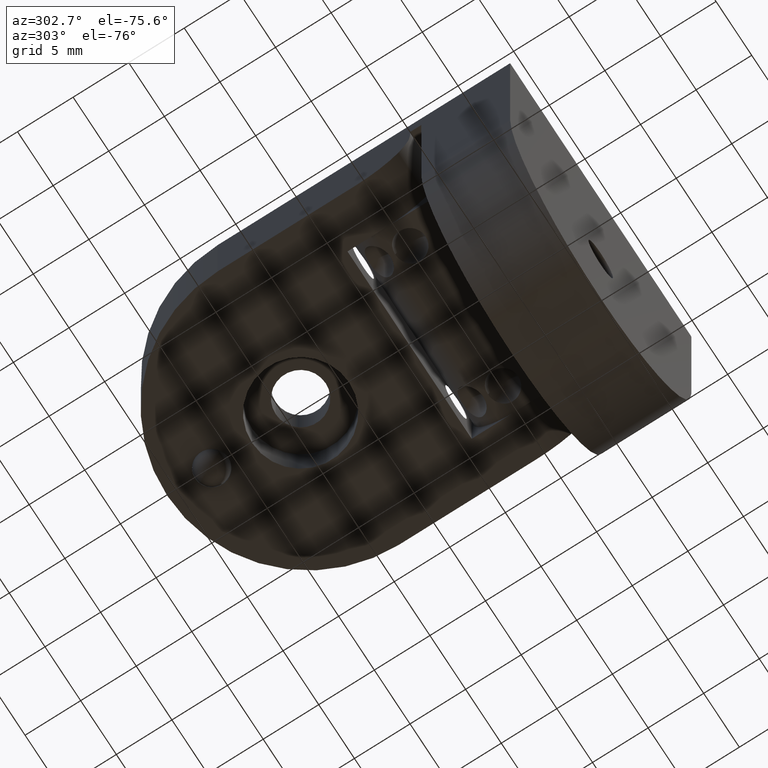
[diagram: clean part render]
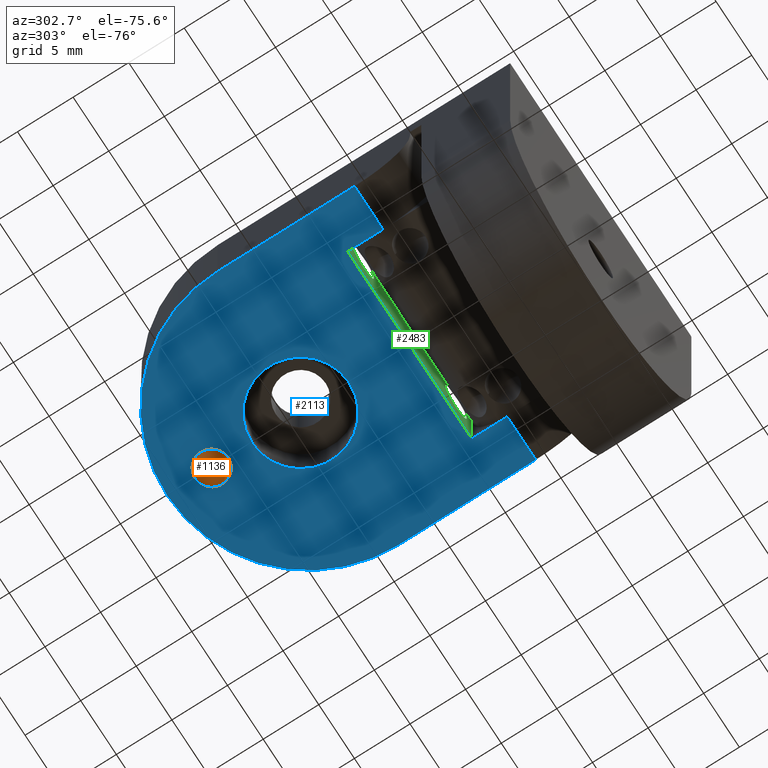
[diagram: same view with three faces highlighted in distinct colors, each labeled with its STEP entity id]
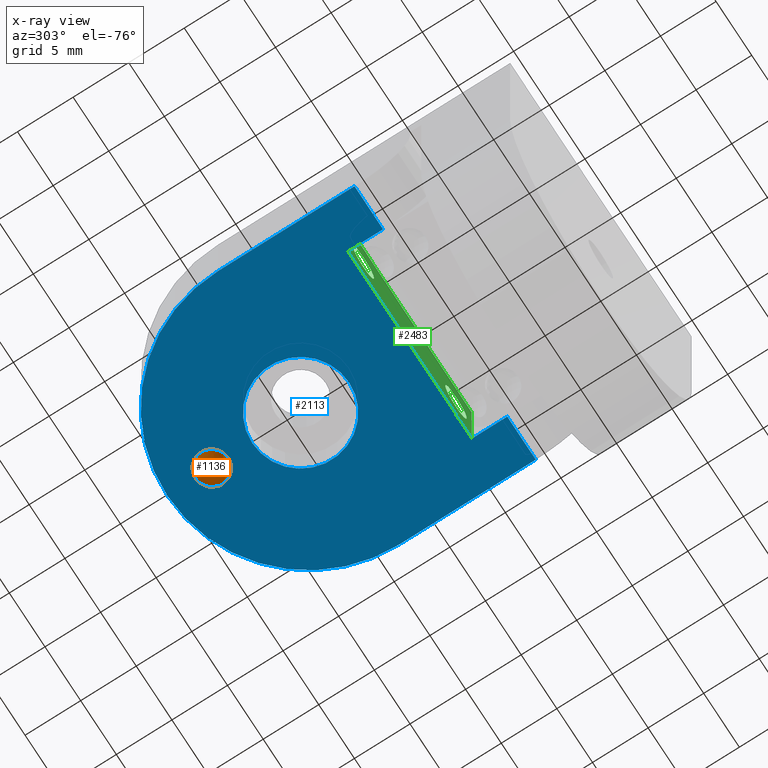
[diagram: x-ray of the same camera — body ghosted, the three highlighted faces saturated]
A machine part, auxiliary view with three faces highlighted in distinct colors.
The next image is the same camera in x-ray (body ghosted, the three faces saturated) — at least one of them is partly hidden behind the body in this view.
Their STEP definitions:

[orange] entity #1136 — the highlighted spherical surface has radius 1.5 mm.
#114 = EDGE_CURVE ( 'NONE', #589, #2104, #953, .T. ) ;
#589 = VERTEX_POINT ( 'NONE', #1924 ) ;
#635 = ORIENTED_EDGE ( 'NONE', *, *, #1484, .T. ) ;
#715 = CARTESIAN_POINT ( 'NONE',  ( 1.835175442783762800E-014, 34.99458246385521000, -7.728073402767171800 ) ) ;
#896 = AXIS2_PLACEMENT_3D ( 'NONE', #2112, #1370, #1125 ) ;
#953 = CIRCLE ( 'NONE', #1268, 1.500000000000000000 ) ;
#957 = DIRECTION ( 'NONE',  ( 1.000000000000000000, 0.0000000000000000000, 0.0000000000000000000 ) ) ;
#1125 = DIRECTION ( 'NONE',  ( 1.000000000000000000, 0.0000000000000000000, 0.0000000000000000000 ) ) ;
#1136 = ADVANCED_FACE ( 'NONE', ( #2755 ), #1628, .T. ) ;
#1243 = AXIS2_PLACEMENT_3D ( 'NONE', #2785, #2299, #2069 ) ;
#1268 = AXIS2_PLACEMENT_3D ( 'NONE', #715, #2370, #957 ) ;
#1290 = EDGE_LOOP ( 'NONE', ( #2354, #635 ) ) ;
#1370 = DIRECTION ( 'NONE',  ( 0.0000000000000000000, -4.524811937412190500E-018, -1.000000000000000000 ) ) ;
#1484 = EDGE_CURVE ( 'NONE', #589, #2104, #1749, .T. ) ;
#1628 = SPHERICAL_SURFACE ( 'NONE', #896, 1.500000000000000000 ) ;
#1695 = CARTESIAN_POINT ( 'NONE',  ( 1.797438828808581800E-014, 36.49458246385521000, -7.728073402767171800 ) ) ;
#1749 = CIRCLE ( 'NONE', #1243, 1.500000000000000000 ) ;
#1924 = CARTESIAN_POINT ( 'NONE',  ( 1.891281758746154400E-014, 33.49458246385521000, -7.728073402767171800 ) ) ;
#2069 = DIRECTION ( 'NONE',  ( -1.000000000000000000, 0.0000000000000000000, 0.0000000000000000000 ) ) ;
#2104 = VERTEX_POINT ( 'NONE', #1695 ) ;
#2112 = CARTESIAN_POINT ( 'NONE',  ( 1.835175442783762800E-014, 34.99458246385521000, -7.728073402767171800 ) ) ;
#2299 = DIRECTION ( 'NONE',  ( 9.383829648144489800E-017, -4.524811937412160500E-018, -1.000000000000000000 ) ) ;
#2354 = ORIENTED_EDGE ( 'NONE', *, *, #114, .F. ) ;
#2370 = DIRECTION ( 'NONE',  ( 2.862638343329075000E-017, 4.524811937412199000E-018, 1.000000000000000000 ) ) ;
#2755 = FACE_OUTER_BOUND ( 'NONE', #1290, .T. ) ;
#2785 = CARTESIAN_POINT ( 'NONE',  ( 1.835175442783762800E-014, 34.99458246385521000, -7.728073402767171800 ) ) ;

[blue] entity #2113 — the highlighted planar face has unit normal (0, -0, 1).
#2 = CARTESIAN_POINT ( 'NONE',  ( -12.69999999999998200, 38.99999999999999300, -7.999999999999996400 ) ) ;
#40 = DIRECTION ( 'NONE',  ( 1.738121547108116200E-016, 1.000000000000000000, 0.0000000000000000000 ) ) ;
#53 = VERTEX_POINT ( 'NONE', #1588 ) ;
#76 = VERTEX_POINT ( 'NONE', #1935 ) ;
#88 = CARTESIAN_POINT ( 'NONE',  ( 1.201800217643921000E-014, 26.29999999999999700, -7.999999999999998200 ) ) ;
#96 = FACE_OUTER_BOUND ( 'NONE', #1973, .T. ) ;
#126 = DIRECTION ( 'NONE',  ( -1.738121547108112500E-016, -1.000000000000000000, 0.0000000000000000000 ) ) ;
#147 = ORIENTED_EDGE ( 'NONE', *, *, #2609, .F. ) ;
#197 = DIRECTION ( 'NONE',  ( 1.738121547108113500E-016, 1.000000000000000000, 1.206061786844440300E-031 ) ) ;
#227 = EDGE_CURVE ( 'NONE', #2131, #244, #2502, .T. ) ;
#244 = VERTEX_POINT ( 'NONE', #2424 ) ;
#267 = ORIENTED_EDGE ( 'NONE', *, *, #792, .T. ) ;
#280 = DIRECTION ( 'NONE',  ( -1.000000000000000000, 1.738121547108111300E-016, 1.734720147809985500E-016 ) ) ;
#317 = DIRECTION ( 'NONE',  ( -1.734720147809981100E-016, -1.206061786844441000E-031, -1.000000000000000000 ) ) ;
#334 = DIRECTION ( 'NONE',  ( -1.738121547108113700E-016, -1.000000000000000000, 0.0000000000000000000 ) ) ;
#415 = ORIENTED_EDGE ( 'NONE', *, *, #1960, .F. ) ;
#423 = CARTESIAN_POINT ( 'NONE',  ( 1.542815815127709900E-014, 38.99999999999999300, -7.999999999999998200 ) ) ;
#443 = ORIENTED_EDGE ( 'NONE', *, *, #2789, .T. ) ;
#476 = DIRECTION ( 'NONE',  ( 5.816392297902422400E-017, 1.000000000000000000, 1.406679104488169600E-031 ) ) ;
#478 = LINE ( 'NONE', #2670, #2280 ) ;
#486 = EDGE_LOOP ( 'NONE', ( #521, #1298 ) ) ;
#505 = ORIENTED_EDGE ( 'NONE', *, *, #708, .T. ) ;
#521 = ORIENTED_EDGE ( 'NONE', *, *, #622, .F. ) ;
#534 = DIRECTION ( 'NONE',  ( 1.734720147809981100E-016, -1.507577233555550300E-031, 1.000000000000000000 ) ) ;
#618 = DIRECTION ( 'NONE',  ( -1.734720147809981100E-016, -1.206061786844441000E-031, -1.000000000000000000 ) ) ;
#621 = CARTESIAN_POINT ( 'NONE',  ( 1.469925632393499100E-014, 33.49999999999998600, -7.999999999999998200 ) ) ;
#622 = EDGE_CURVE ( 'NONE', #2276, #2323, #2804, .T. ) ;
#685 = CARTESIAN_POINT ( 'NONE',  ( 8.700000000000013500, 17.19999999999999200, -8.000000000000000000 ) ) ;
#692 = ORIENTED_EDGE ( 'NONE', *, *, #2390, .T. ) ;
#699 = VECTOR ( 'NONE', #280, 1000.000000000000000 ) ;
#708 = EDGE_CURVE ( 'NONE', #2559, #2655, #478, .T. ) ;
#735 = VECTOR ( 'NONE', #1262, 1000.000000000000000 ) ;
#737 = EDGE_CURVE ( 'NONE', #2323, #2276, #2927, .T. ) ;
#763 = CARTESIAN_POINT ( 'NONE',  ( 12.70000000000002400, 13.99999999999999100, -8.000000000000000000 ) ) ;
#792 = EDGE_CURVE ( 'NONE', #2655, #2383, #2534, .T. ) ;
#837 = LINE ( 'NONE', #1163, #2987 ) ;
#847 = EDGE_LOOP ( 'NONE', ( #2667, #147 ) ) ;
#861 = DIRECTION ( 'NONE',  ( -1.734720147809981100E-016, -1.206061786844441000E-031, -1.000000000000000000 ) ) ;
#864 = VERTEX_POINT ( 'NONE', #2549 ) ;
#904 = CARTESIAN_POINT ( 'NONE',  ( -8.699999999999978000, 13.99999999999999500, -7.999999999999996400 ) ) ;
#954 = ORIENTED_EDGE ( 'NONE', *, *, #2375, .T. ) ;
#1163 = CARTESIAN_POINT ( 'NONE',  ( 12.70000000000001700, 38.99999999999996400, -8.000000000000000000 ) ) ;
#1198 = DIRECTION ( 'NONE',  ( -1.734720147809981100E-016, -1.206061786844441000E-031, -1.000000000000000000 ) ) ;
#1244 = DIRECTION ( 'NONE',  ( -1.000000000000000000, 7.411540321789116800E-017, 1.734720147809985500E-016 ) ) ;
#1262 = DIRECTION ( 'NONE',  ( -1.738121547108113500E-016, -1.000000000000000000, -1.206061786844440300E-031 ) ) ;
#1273 = AXIS2_PLACEMENT_3D ( 'NONE', #2872, #1455, #40 ) ;
#1292 = AXIS2_PLACEMENT_3D ( 'NONE', #1946, #534, #2181 ) ;
#1294 = EDGE_CURVE ( 'NONE', #3061, #864, #1714, .T. ) ;
#1298 = ORIENTED_EDGE ( 'NONE', *, *, #737, .F. ) ;
#1372 = DIRECTION ( 'NONE',  ( -1.000000000000000000, 1.738121547108111300E-016, 1.734720147809985500E-016 ) ) ;
#1428 = FACE_BOUND ( 'NONE', #847, .T. ) ;
#1455 = DIRECTION ( 'NONE',  ( -1.734720147809981100E-016, -1.206061786844441000E-031, -1.000000000000000000 ) ) ;
#1478 = CIRCLE ( 'NONE', #2798, 12.69999999999999900 ) ;
#1513 = CIRCLE ( 'NONE', #1516, 4.366259999999996900 ) ;
#1516 = AXIS2_PLACEMENT_3D ( 'NONE', #2628, #1198, #2867 ) ;
#1534 = VECTOR ( 'NONE', #197, 1000.000000000000000 ) ;
#1577 = ORIENTED_EDGE ( 'NONE', *, *, #1947, .F. ) ;
#1588 = CARTESIAN_POINT ( 'NONE',  ( 1.410132135337499300E-014, 31.36625999999999300, -7.999999999999998200 ) ) ;
#1589 = VERTEX_POINT ( 'NONE', #2274 ) ;
#1606 = VECTOR ( 'NONE', #1372, 1000.000000000000000 ) ;
#1642 = DIRECTION ( 'NONE',  ( -4.051086181743855900E-016, -1.000000000000000000, -8.048271515569820400E-032 ) ) ;
#1649 = CIRCLE ( 'NONE', #2714, 4.366259999999996900 ) ;
#1714 = CIRCLE ( 'NONE', #1787, 12.69999999999999900 ) ;
#1736 = CARTESIAN_POINT ( 'NONE',  ( 1.473290953243385300E-014, 34.99999999999999300, -7.999999999999998200 ) ) ;
#1754 = DIRECTION ( 'NONE',  ( -1.734720147809981100E-016, -1.206061786844441000E-031, -1.000000000000000000 ) ) ;
#1787 = AXIS2_PLACEMENT_3D ( 'NONE', #2030, #618, #126 ) ;
#1816 = EDGE_CURVE ( 'NONE', #53, #76, #1649, .T. ) ;
#1930 = CARTESIAN_POINT ( 'NONE',  ( -8.699999999999985100, 17.19999999999999200, -7.999999999999996400 ) ) ;
#1935 = CARTESIAN_POINT ( 'NONE',  ( 1.349274194935642500E-014, 22.63373999999999600, -7.999999999999998200 ) ) ;
#1946 = CARTESIAN_POINT ( 'NONE',  ( -12.69999999999999400, 8.999999999999996400, -7.999999999999996400 ) ) ;
#1947 = EDGE_CURVE ( 'NONE', #2764, #1589, #3059, .T. ) ;
#1960 = EDGE_CURVE ( 'NONE', #2131, #864, #837, .T. ) ;
#1972 = DIRECTION ( 'NONE',  ( 1.738121547108116200E-016, 1.000000000000000000, 0.0000000000000000000 ) ) ;
#1973 = EDGE_LOOP ( 'NONE', ( #1577, #443, #3006, #415, #2101, #692, #505, #267, #954 ) ) ;
#1989 = FACE_BOUND ( 'NONE', #486, .T. ) ;
#2014 = CARTESIAN_POINT ( 'NONE',  ( 1.499362776450007100E-014, 36.49999999999999300, -7.999999999999998200 ) ) ;
#2030 = CARTESIAN_POINT ( 'NONE',  ( 1.669019073840341200E-014, 26.29999999999999700, -7.999999999999998200 ) ) ;
#2047 = CARTESIAN_POINT ( 'NONE',  ( 1.334241229474736400E-014, 26.99999999999999600, -7.999999999999998200 ) ) ;
#2101 = ORIENTED_EDGE ( 'NONE', *, *, #227, .T. ) ;
#2113 = ADVANCED_FACE ( 'NONE', ( #1989, #1428, #96 ), #2406, .F. ) ;
#2131 = VERTEX_POINT ( 'NONE', #763 ) ;
#2181 = DIRECTION ( 'NONE',  ( -1.738121547108113500E-016, -1.000000000000000000, -1.206061786844440300E-031 ) ) ;
#2198 = CARTESIAN_POINT ( 'NONE',  ( -12.69999999999998700, 26.30000000000000400, -7.999999999999996400 ) ) ;
#2204 = CARTESIAN_POINT ( 'NONE',  ( -12.69999999999998500, 13.99999999999999800, -7.999999999999996400 ) ) ;
#2238 = LINE ( 'NONE', #2314, #1534 ) ;
#2274 = CARTESIAN_POINT ( 'NONE',  ( -12.69999999999998300, 13.99999999999999500, -7.999999999999996400 ) ) ;
#2276 = VERTEX_POINT ( 'NONE', #2014 ) ;
#2280 = VECTOR ( 'NONE', #1244, 1000.000000000000000 ) ;
#2314 = CARTESIAN_POINT ( 'NONE',  ( 8.700000000000011700, 8.999999999999994700, -8.000000000000000000 ) ) ;
#2323 = VERTEX_POINT ( 'NONE', #621 ) ;
#2375 = EDGE_CURVE ( 'NONE', #2383, #1589, #2882, .T. ) ;
#2383 = VERTEX_POINT ( 'NONE', #904 ) ;
#2390 = EDGE_CURVE ( 'NONE', #244, #2559, #2238, .T. ) ;
#2406 = PLANE ( 'NONE',  #1292 ) ;
#2424 = CARTESIAN_POINT ( 'NONE',  ( 8.700000000000020600, 13.99999999999999100, -8.000000000000000000 ) ) ;
#2428 = VECTOR ( 'NONE', #1642, 1000.000000000000000 ) ;
#2502 = LINE ( 'NONE', #2204, #699 ) ;
#2534 = LINE ( 'NONE', #2683, #735 ) ;
#2549 = CARTESIAN_POINT ( 'NONE',  ( 12.70000000000001700, 26.29999999999999000, -8.000000000000000000 ) ) ;
#2559 = VERTEX_POINT ( 'NONE', #685 ) ;
#2609 = EDGE_CURVE ( 'NONE', #76, #53, #1513, .T. ) ;
#2613 = AXIS2_PLACEMENT_3D ( 'NONE', #1736, #317, #1972 ) ;
#2628 = CARTESIAN_POINT ( 'NONE',  ( 1.334241229474736400E-014, 26.99999999999999600, -7.999999999999998200 ) ) ;
#2655 = VERTEX_POINT ( 'NONE', #1930 ) ;
#2667 = ORIENTED_EDGE ( 'NONE', *, *, #1816, .F. ) ;
#2670 = CARTESIAN_POINT ( 'NONE',  ( -8.699999999999985100, 17.19999999999999200, -7.999999999999996400 ) ) ;
#2683 = CARTESIAN_POINT ( 'NONE',  ( -8.699999999999986900, 8.999999999999996400, -7.999999999999996400 ) ) ;
#2714 = AXIS2_PLACEMENT_3D ( 'NONE', #2047, #861, #2978 ) ;
#2764 = VERTEX_POINT ( 'NONE', #2198 ) ;
#2789 = EDGE_CURVE ( 'NONE', #2764, #3061, #1478, .T. ) ;
#2793 = CARTESIAN_POINT ( 'NONE',  ( -12.69999999999998500, 13.99999999999999800, -7.999999999999996400 ) ) ;
#2798 = AXIS2_PLACEMENT_3D ( 'NONE', #88, #1754, #334 ) ;
#2804 = CIRCLE ( 'NONE', #1273, 1.500000000000001300 ) ;
#2867 = DIRECTION ( 'NONE',  ( 1.738121547108116400E-016, 1.000000000000000000, 0.0000000000000000000 ) ) ;
#2872 = CARTESIAN_POINT ( 'NONE',  ( 1.473290953243385300E-014, 34.99999999999999300, -7.999999999999998200 ) ) ;
#2882 = LINE ( 'NONE', #2793, #1606 ) ;
#2927 = CIRCLE ( 'NONE', #2613, 1.500000000000001300 ) ;
#2978 = DIRECTION ( 'NONE',  ( 1.738121547108116400E-016, 1.000000000000000000, 0.0000000000000000000 ) ) ;
#2987 = VECTOR ( 'NONE', #476, 1000.000000000000000 ) ;
#3006 = ORIENTED_EDGE ( 'NONE', *, *, #1294, .T. ) ;
#3059 = LINE ( 'NONE', #2, #2428 ) ;
#3061 = VERTEX_POINT ( 'NONE', #423 ) ;

[green] entity #2483 — the highlighted planar face has unit normal (0, 1, 0).
#51 = EDGE_CURVE ( 'NONE', #2559, #1979, #987, .T. ) ;
#70 = DIRECTION ( 'NONE',  ( -1.738121547108113500E-016, -1.000000000000000000, -1.206061786844440300E-031 ) ) ;
#79 = AXIS2_PLACEMENT_3D ( 'NONE', #1522, #109, #1766 ) ;
#91 = VERTEX_POINT ( 'NONE', #2759 ) ;
#109 = DIRECTION ( 'NONE',  ( -1.738121547108113500E-016, -1.000000000000000000, -1.206061786844440300E-031 ) ) ;
#142 = AXIS2_PLACEMENT_3D ( 'NONE', #2134, #714, #2369 ) ;
#145 = CIRCLE ( 'NONE', #462, 1.499999999999998700 ) ;
#149 = DIRECTION ( 'NONE',  ( 1.000000000000000000, 0.0000000000000000000, 0.0000000000000000000 ) ) ;
#168 = VECTOR ( 'NONE', #246, 1000.000000000000000 ) ;
#177 = DIRECTION ( 'NONE',  ( 1.734720147809981100E-016, 1.206061786844441000E-031, 1.000000000000000000 ) ) ;
#183 = ORIENTED_EDGE ( 'NONE', *, *, #51, .T. ) ;
#206 = CARTESIAN_POINT ( 'NONE',  ( -8.699999999999983300, 17.19999999999999200, 3.469446951953614200E-015 ) ) ;
#246 = DIRECTION ( 'NONE',  ( 1.734720147809981100E-016, 1.206061786844441000E-031, 1.000000000000000000 ) ) ;
#371 = VECTOR ( 'NONE', #177, 1000.000000000000000 ) ;
#398 = CARTESIAN_POINT ( 'NONE',  ( -7.999999999999983100, 17.19999999999999200, -3.999999999999994700 ) ) ;
#462 = AXIS2_PLACEMENT_3D ( 'NONE', #817, #2703, #2159 ) ;
#478 = LINE ( 'NONE', #2670, #2280 ) ;
#519 = VERTEX_POINT ( 'NONE', #206 ) ;
#662 = DIRECTION ( 'NONE',  ( -1.000000000000000000, 7.411540321789116800E-017, 1.734720147809985500E-016 ) ) ;
#685 = CARTESIAN_POINT ( 'NONE',  ( 8.700000000000013500, 17.19999999999999200, -8.000000000000000000 ) ) ;
#708 = EDGE_CURVE ( 'NONE', #2559, #2655, #478, .T. ) ;
#710 = CARTESIAN_POINT ( 'NONE',  ( 8.700000000000015300, 17.19999999999999200, 0.0000000000000000000 ) ) ;
#714 = DIRECTION ( 'NONE',  ( 7.411540321789116800E-017, 1.000000000000000000, 1.379007750330414200E-031 ) ) ;
#731 = EDGE_LOOP ( 'NONE', ( #1964, #1675 ) ) ;
#744 = FACE_OUTER_BOUND ( 'NONE', #1563, .T. ) ;
#817 = CARTESIAN_POINT ( 'NONE',  ( -6.499999999999984000, 17.19999999999999200, -3.999999999999995600 ) ) ;
#843 = EDGE_CURVE ( 'NONE', #1313, #1261, #2617, .T. ) ;
#858 = EDGE_CURVE ( 'NONE', #1979, #519, #1841, .T. ) ;
#987 = LINE ( 'NONE', #2806, #371 ) ;
#1068 = CIRCLE ( 'NONE', #2256, 1.499999999999998700 ) ;
#1202 = VECTOR ( 'NONE', #662, 1000.000000000000000 ) ;
#1244 = DIRECTION ( 'NONE',  ( -1.000000000000000000, 7.411540321789116800E-017, 1.734720147809985500E-016 ) ) ;
#1261 = VERTEX_POINT ( 'NONE', #398 ) ;
#1301 = EDGE_CURVE ( 'NONE', #1565, #91, #1068, .T. ) ;
#1313 = VERTEX_POINT ( 'NONE', #1801 ) ;
#1358 = EDGE_CURVE ( 'NONE', #1261, #1313, #145, .T. ) ;
#1434 = LINE ( 'NONE', #1660, #168 ) ;
#1490 = CARTESIAN_POINT ( 'NONE',  ( 6.500000000000015100, 17.19999999999999200, -3.999999999999997300 ) ) ;
#1522 = CARTESIAN_POINT ( 'NONE',  ( -6.499999999999984000, 17.19999999999999200, -3.999999999999995600 ) ) ;
#1558 = DIRECTION ( 'NONE',  ( -1.738121547108113500E-016, -1.000000000000000000, -1.206061786844440300E-031 ) ) ;
#1563 = EDGE_LOOP ( 'NONE', ( #1923, #1910, #1834, #183 ) ) ;
#1565 = VERTEX_POINT ( 'NONE', #2263 ) ;
#1660 = CARTESIAN_POINT ( 'NONE',  ( -8.699999999999985100, 17.19999999999999200, -7.999999999999996400 ) ) ;
#1675 = ORIENTED_EDGE ( 'NONE', *, *, #1358, .F. ) ;
#1697 = AXIS2_PLACEMENT_3D ( 'NONE', #1490, #70, #1730 ) ;
#1730 = DIRECTION ( 'NONE',  ( 1.000000000000000000, 0.0000000000000000000, 0.0000000000000000000 ) ) ;
#1755 = EDGE_LOOP ( 'NONE', ( #2724, #2961 ) ) ;
#1766 = DIRECTION ( 'NONE',  ( 1.000000000000000000, 0.0000000000000000000, 0.0000000000000000000 ) ) ;
#1801 = CARTESIAN_POINT ( 'NONE',  ( -4.999999999999985800, 17.19999999999999200, -3.999999999999995600 ) ) ;
#1834 = ORIENTED_EDGE ( 'NONE', *, *, #708, .F. ) ;
#1841 = LINE ( 'NONE', #2949, #1202 ) ;
#1877 = EDGE_CURVE ( 'NONE', #2655, #519, #1434, .T. ) ;
#1910 = ORIENTED_EDGE ( 'NONE', *, *, #1877, .F. ) ;
#1923 = ORIENTED_EDGE ( 'NONE', *, *, #858, .T. ) ;
#1928 = FACE_BOUND ( 'NONE', #731, .T. ) ;
#1930 = CARTESIAN_POINT ( 'NONE',  ( -8.699999999999985100, 17.19999999999999200, -7.999999999999996400 ) ) ;
#1964 = ORIENTED_EDGE ( 'NONE', *, *, #843, .F. ) ;
#1979 = VERTEX_POINT ( 'NONE', #710 ) ;
#2134 = CARTESIAN_POINT ( 'NONE',  ( -8.699999999999985100, 17.19999999999999200, -7.999999999999996400 ) ) ;
#2159 = DIRECTION ( 'NONE',  ( 1.000000000000000000, 0.0000000000000000000, 0.0000000000000000000 ) ) ;
#2256 = AXIS2_PLACEMENT_3D ( 'NONE', #2499, #1558, #149 ) ;
#2263 = CARTESIAN_POINT ( 'NONE',  ( 5.000000000000017800, 17.19999999999999200, -3.999999999999996400 ) ) ;
#2280 = VECTOR ( 'NONE', #1244, 1000.000000000000000 ) ;
#2346 = PLANE ( 'NONE',  #142 ) ;
#2369 = DIRECTION ( 'NONE',  ( -1.000000000000000000, 7.411540321789116800E-017, 1.734720147809985500E-016 ) ) ;
#2400 = CIRCLE ( 'NONE', #1697, 1.499999999999998700 ) ;
#2483 = ADVANCED_FACE ( 'NONE', ( #1928, #2544, #744 ), #2346, .F. ) ;
#2499 = CARTESIAN_POINT ( 'NONE',  ( 6.500000000000015100, 17.19999999999999200, -3.999999999999997300 ) ) ;
#2544 = FACE_BOUND ( 'NONE', #1755, .T. ) ;
#2559 = VERTEX_POINT ( 'NONE', #685 ) ;
#2617 = CIRCLE ( 'NONE', #79, 1.499999999999998700 ) ;
#2655 = VERTEX_POINT ( 'NONE', #1930 ) ;
#2670 = CARTESIAN_POINT ( 'NONE',  ( -8.699999999999985100, 17.19999999999999200, -7.999999999999996400 ) ) ;
#2703 = DIRECTION ( 'NONE',  ( -1.738121547108113500E-016, -1.000000000000000000, -1.206061786844440300E-031 ) ) ;
#2724 = ORIENTED_EDGE ( 'NONE', *, *, #2738, .F. ) ;
#2738 = EDGE_CURVE ( 'NONE', #91, #1565, #2400, .T. ) ;
#2759 = CARTESIAN_POINT ( 'NONE',  ( 8.000000000000014200, 17.19999999999999200, -3.999999999999997300 ) ) ;
#2806 = CARTESIAN_POINT ( 'NONE',  ( 8.700000000000013500, 17.19999999999999200, -8.000000000000000000 ) ) ;
#2949 = CARTESIAN_POINT ( 'NONE',  ( -8.699999999999983300, 17.19999999999999200, 3.469446951953614200E-015 ) ) ;
#2961 = ORIENTED_EDGE ( 'NONE', *, *, #1301, .F. ) ;